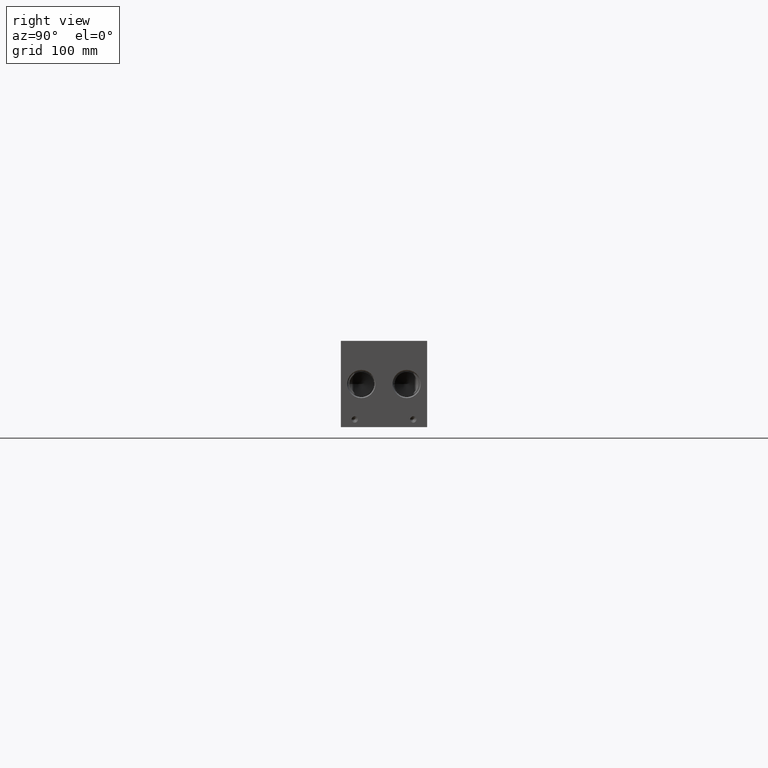
[diagram: clean part render]
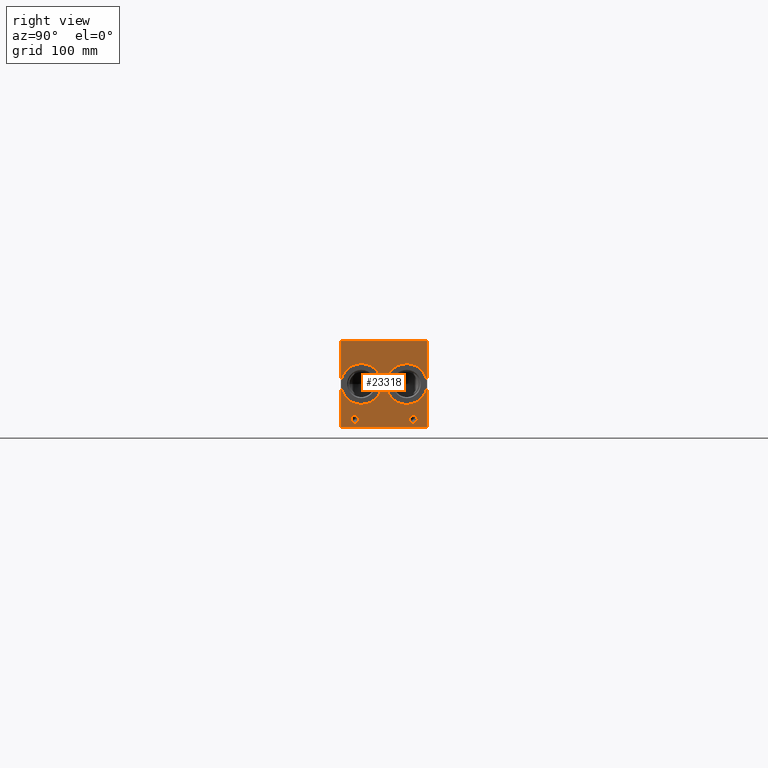
[diagram: same view with one face highlighted and labeled with its STEP entity id]
A machine part, right view. The second image highlights one B-rep face of the part: STEP entity #23318.
In plain terms, the highlighted planar face has unit normal (1, 0, 0).
Its self-contained STEP definition (entity closure, byte-faithful):
#722=CIRCLE('',#24393,21.0185);
#723=CIRCLE('',#24394,21.0185);
#724=CIRCLE('',#24395,21.0185);
#725=CIRCLE('',#24396,21.0185);
#726=CIRCLE('',#24397,3.9624);
#727=CIRCLE('',#24398,3.9624);
#728=CIRCLE('',#24399,3.9624);
#729=CIRCLE('',#24400,3.9624);
#2023=B_SPLINE_CURVE_WITH_KNOTS('',2,(#38222,#38223,#38224,#38225),
 .UNSPECIFIED.,.F.,.F.,(3,1,3),(0.,1.,2.),.UNSPECIFIED.);
#2025=B_SPLINE_CURVE_WITH_KNOTS('',2,(#38243,#38244,#38245,#38246),
 .UNSPECIFIED.,.F.,.F.,(3,1,3),(0.,1.,2.),.UNSPECIFIED.);
#2027=B_SPLINE_CURVE_WITH_KNOTS('',2,(#38292,#38293,#38294,#38295),
 .UNSPECIFIED.,.F.,.F.,(3,1,3),(0.,1.,2.),.UNSPECIFIED.);
#2029=B_SPLINE_CURVE_WITH_KNOTS('',2,(#38310,#38311,#38312,#38313),
 .UNSPECIFIED.,.F.,.F.,(3,1,3),(0.,1.,2.),.UNSPECIFIED.);
#2179=FACE_BOUND('',#4369,.T.);
#2180=FACE_BOUND('',#4370,.T.);
#2181=FACE_BOUND('',#4371,.T.);
#2182=FACE_BOUND('',#4372,.T.);
#2183=FACE_BOUND('',#4373,.T.);
#2184=FACE_BOUND('',#4374,.T.);
#3023=FACE_OUTER_BOUND('',#4368,.T.);
#4368=EDGE_LOOP('',(#18310,#18311,#18312,#18313));
#4369=EDGE_LOOP('',(#18314,#18315,#18316,#18317,#18318,#18319,#18320,#18321));
#4370=EDGE_LOOP('',(#18322,#18323));
#4371=EDGE_LOOP('',(#18324,#18325));
#4372=EDGE_LOOP('',(#18326,#18327));
#4373=EDGE_LOOP('',(#18328,#18329));
#4374=EDGE_LOOP('',(#18330,#18331,#18332,#18333,#18334,#18335,#18336,#18337,
#18338));
#5169=LINE('',#31477,#7096);
#6413=LINE('',#38023,#8340);
#6417=LINE('',#38031,#8344);
#6420=LINE('',#38037,#8347);
#6423=LINE('',#38043,#8350);
#6426=LINE('',#38049,#8353);
#6429=LINE('',#38055,#8356);
#6432=LINE('',#38061,#8359);
#6435=LINE('',#38066,#8362);
#6477=LINE('',#38255,#8404);
#6480=LINE('',#38261,#8407);
#6483=LINE('',#38267,#8410);
#6486=LINE('',#38273,#8413);
#6489=LINE('',#38279,#8416);
#6493=LINE('',#38321,#8420);
#6494=LINE('',#38323,#8421);
#6495=LINE('',#38324,#8422);
#7096=VECTOR('',#25835,10.);
#8340=VECTOR('',#27941,10.);
#8344=VECTOR('',#27947,10.);
#8347=VECTOR('',#27952,10.);
#8350=VECTOR('',#27957,10.);
#8353=VECTOR('',#27962,10.);
#8356=VECTOR('',#27967,10.);
#8359=VECTOR('',#27972,10.);
#8362=VECTOR('',#27977,10.);
#8404=VECTOR('',#28047,10.);
#8407=VECTOR('',#28052,10.);
#8410=VECTOR('',#28057,10.);
#8413=VECTOR('',#28062,10.);
#8416=VECTOR('',#28067,10.);
#8420=VECTOR('',#28075,10.);
#8421=VECTOR('',#28076,10.);
#8422=VECTOR('',#28077,10.);
#9012=VERTEX_POINT('',#31474);
#9013=VERTEX_POINT('',#31476);
#10203=VERTEX_POINT('',#38021);
#10204=VERTEX_POINT('',#38022);
#10207=VERTEX_POINT('',#38030);
#10209=VERTEX_POINT('',#38036);
#10211=VERTEX_POINT('',#38042);
#10213=VERTEX_POINT('',#38048);
#10215=VERTEX_POINT('',#38054);
#10217=VERTEX_POINT('',#38060);
#10249=VERTEX_POINT('',#38220);
#10250=VERTEX_POINT('',#38221);
#10253=VERTEX_POINT('',#38242);
#10255=VERTEX_POINT('',#38254);
#10257=VERTEX_POINT('',#38260);
#10259=VERTEX_POINT('',#38266);
#10261=VERTEX_POINT('',#38272);
#10263=VERTEX_POINT('',#38278);
#10265=VERTEX_POINT('',#38291);
#10267=VERTEX_POINT('',#38320);
#10268=VERTEX_POINT('',#38322);
#10269=VERTEX_POINT('',#38325);
#10270=VERTEX_POINT('',#38326);
#10271=VERTEX_POINT('',#38329);
#10272=VERTEX_POINT('',#38330);
#10273=VERTEX_POINT('',#38333);
#10274=VERTEX_POINT('',#38334);
#10275=VERTEX_POINT('',#38337);
#10276=VERTEX_POINT('',#38338);
#11367=EDGE_CURVE('',#9012,#9013,#5169,.T.);
#13115=EDGE_CURVE('',#10203,#10204,#6413,.T.);
#13119=EDGE_CURVE('',#10207,#10203,#6417,.T.);
#13122=EDGE_CURVE('',#10209,#10207,#6420,.T.);
#13125=EDGE_CURVE('',#10211,#10209,#6423,.T.);
#13128=EDGE_CURVE('',#10213,#10211,#6426,.T.);
#13131=EDGE_CURVE('',#10215,#10213,#6429,.T.);
#13134=EDGE_CURVE('',#10217,#10215,#6432,.T.);
#13137=EDGE_CURVE('',#10204,#10217,#6435,.T.);
#13184=EDGE_CURVE('',#10249,#10250,#2023,.T.);
#13188=EDGE_CURVE('',#10253,#10249,#2025,.T.);
#13191=EDGE_CURVE('',#10255,#10253,#6477,.T.);
#13194=EDGE_CURVE('',#10257,#10255,#6480,.T.);
#13197=EDGE_CURVE('',#10259,#10257,#6483,.T.);
#13200=EDGE_CURVE('',#10261,#10259,#6486,.T.);
#13203=EDGE_CURVE('',#10263,#10261,#6489,.T.);
#13206=EDGE_CURVE('',#10265,#10263,#2027,.T.);
#13209=EDGE_CURVE('',#10250,#10265,#2029,.T.);
#13211=EDGE_CURVE('',#9012,#10267,#6493,.T.);
#13212=EDGE_CURVE('',#10267,#10268,#6494,.T.);
#13213=EDGE_CURVE('',#9013,#10268,#6495,.T.);
#13214=EDGE_CURVE('',#10269,#10270,#722,.T.);
#13215=EDGE_CURVE('',#10270,#10269,#723,.T.);
#13216=EDGE_CURVE('',#10271,#10272,#724,.T.);
#13217=EDGE_CURVE('',#10272,#10271,#725,.T.);
#13218=EDGE_CURVE('',#10273,#10274,#726,.T.);
#13219=EDGE_CURVE('',#10274,#10273,#727,.T.);
#13220=EDGE_CURVE('',#10275,#10276,#728,.T.);
#13221=EDGE_CURVE('',#10276,#10275,#729,.T.);
#18310=ORIENTED_EDGE('',*,*,#13211,.T.);
#18311=ORIENTED_EDGE('',*,*,#13212,.T.);
#18312=ORIENTED_EDGE('',*,*,#13213,.F.);
#18313=ORIENTED_EDGE('',*,*,#11367,.F.);
#18314=ORIENTED_EDGE('',*,*,#13115,.T.);
#18315=ORIENTED_EDGE('',*,*,#13137,.T.);
#18316=ORIENTED_EDGE('',*,*,#13134,.T.);
#18317=ORIENTED_EDGE('',*,*,#13131,.T.);
#18318=ORIENTED_EDGE('',*,*,#13128,.T.);
#18319=ORIENTED_EDGE('',*,*,#13125,.T.);
#18320=ORIENTED_EDGE('',*,*,#13122,.T.);
#18321=ORIENTED_EDGE('',*,*,#13119,.T.);
#18322=ORIENTED_EDGE('',*,*,#13214,.T.);
#18323=ORIENTED_EDGE('',*,*,#13215,.T.);
#18324=ORIENTED_EDGE('',*,*,#13216,.T.);
#18325=ORIENTED_EDGE('',*,*,#13217,.T.);
#18326=ORIENTED_EDGE('',*,*,#13218,.T.);
#18327=ORIENTED_EDGE('',*,*,#13219,.T.);
#18328=ORIENTED_EDGE('',*,*,#13220,.T.);
#18329=ORIENTED_EDGE('',*,*,#13221,.T.);
#18330=ORIENTED_EDGE('',*,*,#13184,.T.);
#18331=ORIENTED_EDGE('',*,*,#13209,.T.);
#18332=ORIENTED_EDGE('',*,*,#13206,.T.);
#18333=ORIENTED_EDGE('',*,*,#13203,.T.);
#18334=ORIENTED_EDGE('',*,*,#13200,.T.);
#18335=ORIENTED_EDGE('',*,*,#13197,.T.);
#18336=ORIENTED_EDGE('',*,*,#13194,.T.);
#18337=ORIENTED_EDGE('',*,*,#13191,.T.);
#18338=ORIENTED_EDGE('',*,*,#13188,.T.);
#21767=PLANE('',#24392);
#23318=ADVANCED_FACE('',(#3023,#2179,#2180,#2181,#2182,#2183,#2184),#21767,
 .T.);
#24392=AXIS2_PLACEMENT_3D('',#38319,#28073,#28074);
#24393=AXIS2_PLACEMENT_3D('',#38327,#28078,#28079);
#24394=AXIS2_PLACEMENT_3D('',#38328,#28080,#28081);
#24395=AXIS2_PLACEMENT_3D('',#38331,#28082,#28083);
#24396=AXIS2_PLACEMENT_3D('',#38332,#28084,#28085);
#24397=AXIS2_PLACEMENT_3D('',#38335,#28086,#28087);
#24398=AXIS2_PLACEMENT_3D('',#38336,#28088,#28089);
#24399=AXIS2_PLACEMENT_3D('',#38339,#28090,#28091);
#24400=AXIS2_PLACEMENT_3D('',#38340,#28092,#28093);
#25835=DIRECTION('',(0.,0.,1.));
#27941=DIRECTION('',(0.,-1.,0.));
#27947=DIRECTION('',(0.,0.,-1.));
#27952=DIRECTION('',(0.,-1.,0.));
#27957=DIRECTION('',(0.,0.,-1.));
#27962=DIRECTION('',(0.,1.,0.));
#27967=DIRECTION('',(0.,0.,1.));
#27972=DIRECTION('',(0.,-1.,0.));
#27977=DIRECTION('',(0.,0.,1.));
#28047=DIRECTION('',(0.,1.,0.));
#28052=DIRECTION('',(0.,0.,1.));
#28057=DIRECTION('',(0.,-1.,0.));
#28062=DIRECTION('',(0.,0.,-1.));
#28067=DIRECTION('',(0.,-1.,0.));
#28073=DIRECTION('center_axis',(1.,0.,0.));
#28074=DIRECTION('ref_axis',(0.,1.,0.));
#28075=DIRECTION('',(0.,1.,0.));
#28076=DIRECTION('',(0.,0.,1.));
#28077=DIRECTION('',(0.,1.,0.));
#28078=DIRECTION('center_axis',(-1.,0.,0.));
#28079=DIRECTION('ref_axis',(0.,0.,-1.));
#28080=DIRECTION('center_axis',(-1.,0.,0.));
#28081=DIRECTION('ref_axis',(0.,0.,-1.));
#28082=DIRECTION('center_axis',(-1.,0.,0.));
#28083=DIRECTION('ref_axis',(0.,0.,-1.));
#28084=DIRECTION('center_axis',(-1.,0.,0.));
#28085=DIRECTION('ref_axis',(0.,0.,-1.));
#28086=DIRECTION('center_axis',(-1.,0.,0.));
#28087=DIRECTION('ref_axis',(0.,1.,0.));
#28088=DIRECTION('center_axis',(-1.,0.,0.));
#28089=DIRECTION('ref_axis',(0.,1.,0.));
#28090=DIRECTION('center_axis',(-1.,0.,0.));
#28091=DIRECTION('ref_axis',(0.,1.,0.));
#28092=DIRECTION('center_axis',(-1.,0.,0.));
#28093=DIRECTION('ref_axis',(0.,1.,0.));
#31474=CARTESIAN_POINT('',(742.95,0.,0.));
#31476=CARTESIAN_POINT('',(742.95,0.,88.9));
#31477=CARTESIAN_POINT('',(742.95,0.,0.));
#38021=CARTESIAN_POINT('',(742.95,78.375415271453,69.05625));
#38022=CARTESIAN_POINT('',(742.95,77.5314930799135,69.05625));
#38023=CARTESIAN_POINT('',(742.95,39.1877076357265,69.05625));
#38030=CARTESIAN_POINT('',(742.95,78.375415271453,74.6549533194816));
#38031=CARTESIAN_POINT('',(742.95,78.375415271453,37.3274766597408));
#38036=CARTESIAN_POINT('',(742.95,80.5058042183881,74.6549533194816));
#38037=CARTESIAN_POINT('',(742.95,40.252902109194,74.6549533194816));
#38042=CARTESIAN_POINT('',(742.95,80.5058042183881,75.4062499046326));
#38043=CARTESIAN_POINT('',(742.95,80.5058042183881,37.7031249523163));
#38048=CARTESIAN_POINT('',(742.95,75.4011041329784,75.4062499046326));
#38049=CARTESIAN_POINT('',(742.95,37.7005520664892,75.4062499046326));
#38054=CARTESIAN_POINT('',(742.95,75.4011041329784,74.6549533194816));
#38055=CARTESIAN_POINT('',(742.95,75.4011041329784,37.3274766597408));
#38060=CARTESIAN_POINT('',(742.95,77.5314930799135,74.6549533194816));
#38061=CARTESIAN_POINT('',(742.95,38.7657465399567,74.6549533194816));
#38066=CARTESIAN_POINT('',(742.95,77.5314930799135,34.528125));
#38220=CARTESIAN_POINT('',(742.95,8.66306720235939,75.0100181439707));
#38221=CARTESIAN_POINT('',(742.95,9.41950965453199,73.491987372604));
#38222=CARTESIAN_POINT('Ctrl Pts',(742.95,8.66306720235939,75.0100181439707));
#38223=CARTESIAN_POINT('Ctrl Pts',(742.95,9.01813202684857,74.7681623939564));
#38224=CARTESIAN_POINT('Ctrl Pts',(742.95,9.41950965453199,74.0220116758269));
#38225=CARTESIAN_POINT('Ctrl Pts',(742.95,9.41950965453199,73.491987372604));
#38242=CARTESIAN_POINT('',(742.95,7.0009521543883,75.4062499046326));
#38243=CARTESIAN_POINT('Ctrl Pts',(742.95,7.0009521543883,75.4062499046326));
#38244=CARTESIAN_POINT('Ctrl Pts',(742.95,7.56699752676236,75.4062499046326));
#38245=CARTESIAN_POINT('Ctrl Pts',(742.95,8.35946104808603,75.2209986918556));
#38246=CARTESIAN_POINT('Ctrl Pts',(742.95,8.66306720235939,75.0100181439707));
#38254=CARTESIAN_POINT('',(742.95,5.40573337769779,75.4062499046326));
#38255=CARTESIAN_POINT('',(742.95,2.70286668884889,75.4062499046326));
#38260=CARTESIAN_POINT('',(742.95,5.40573337769779,69.05625));
#38261=CARTESIAN_POINT('',(742.95,5.40573337769779,34.528125));
#38266=CARTESIAN_POINT('',(742.95,6.24965556923729,69.05625));
#38267=CARTESIAN_POINT('',(742.95,3.12482778461864,69.05625));
#38272=CARTESIAN_POINT('',(742.95,6.24965556923729,71.4233488299279));
#38273=CARTESIAN_POINT('',(742.95,6.24965556923729,35.7116744149639));
#38278=CARTESIAN_POINT('',(742.95,6.96493108523723,71.4233488299279));
#38279=CARTESIAN_POINT('',(742.95,3.48246554261861,71.4233488299279));
#38291=CARTESIAN_POINT('',(742.95,8.8637560162011,72.0820198086904));
#38292=CARTESIAN_POINT('Ctrl Pts',(742.95,8.8637560162011,72.0820198086904));
#38293=CARTESIAN_POINT('Ctrl Pts',(742.95,8.53442052681983,71.7578301863307));
#38294=CARTESIAN_POINT('Ctrl Pts',(742.95,7.64418553208609,71.4233488299279));
#38295=CARTESIAN_POINT('Ctrl Pts',(742.95,6.96493108523723,71.4233488299279));
#38310=CARTESIAN_POINT('Ctrl Pts',(742.95,9.41950965453199,73.491987372604));
#38311=CARTESIAN_POINT('Ctrl Pts',(742.95,9.41950965453199,73.0803180108774));
#38312=CARTESIAN_POINT('Ctrl Pts',(742.95,9.1261952343018,72.3393131597695));
#38313=CARTESIAN_POINT('Ctrl Pts',(742.95,8.8637560162011,72.0820198086904));
#38319=CARTESIAN_POINT('Origin',(742.95,0.,0.));
#38320=CARTESIAN_POINT('',(742.95,88.9,0.));
#38321=CARTESIAN_POINT('',(742.95,0.,0.));
#38322=CARTESIAN_POINT('',(742.95,88.9,88.9));
#38323=CARTESIAN_POINT('',(742.95,88.9,0.));
#38324=CARTESIAN_POINT('',(742.95,0.,88.9));
#38325=CARTESIAN_POINT('',(742.95,21.082,23.4315));
#38326=CARTESIAN_POINT('',(742.95,21.082,65.4685));
#38327=CARTESIAN_POINT('Origin',(742.95,21.082,44.45));
#38328=CARTESIAN_POINT('Origin',(742.95,21.082,44.45));
#38329=CARTESIAN_POINT('',(742.95,67.818,23.4315));
#38330=CARTESIAN_POINT('',(742.95,67.818,65.4685));
#38331=CARTESIAN_POINT('Origin',(742.95,67.818,44.45));
#38332=CARTESIAN_POINT('Origin',(742.95,67.818,44.45));
#38333=CARTESIAN_POINT('',(742.95,78.5876,7.9248));
#38334=CARTESIAN_POINT('',(742.95,70.6628,7.9248));
#38335=CARTESIAN_POINT('Origin',(742.95,74.6252,7.9248));
#38336=CARTESIAN_POINT('Origin',(742.95,74.6252,7.9248));
#38337=CARTESIAN_POINT('',(742.95,18.2372,7.9248));
#38338=CARTESIAN_POINT('',(742.95,10.3124,7.9248));
#38339=CARTESIAN_POINT('Origin',(742.95,14.2748,7.9248));
#38340=CARTESIAN_POINT('Origin',(742.95,14.2748,7.9248));